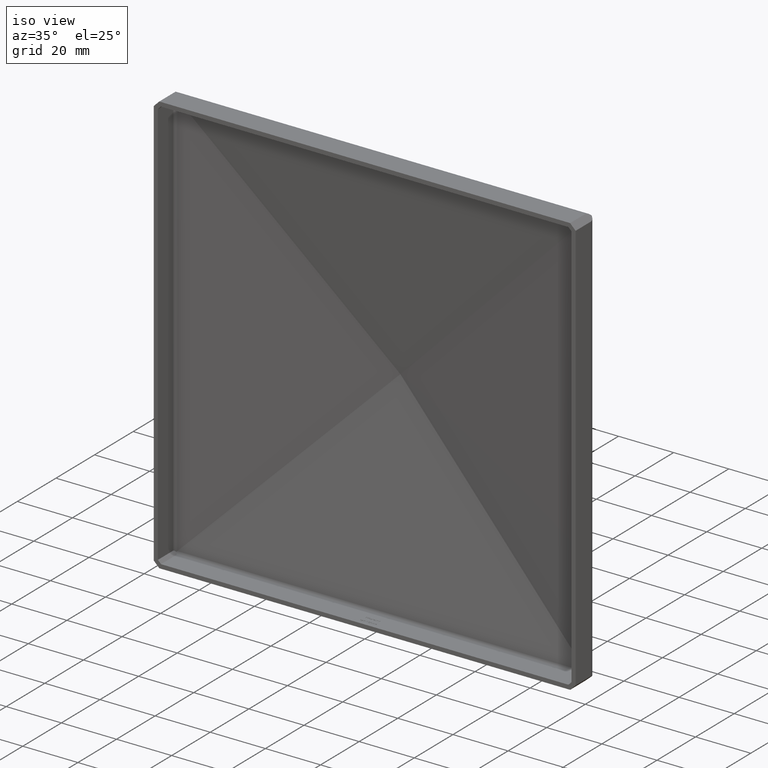
[diagram: clean part render]
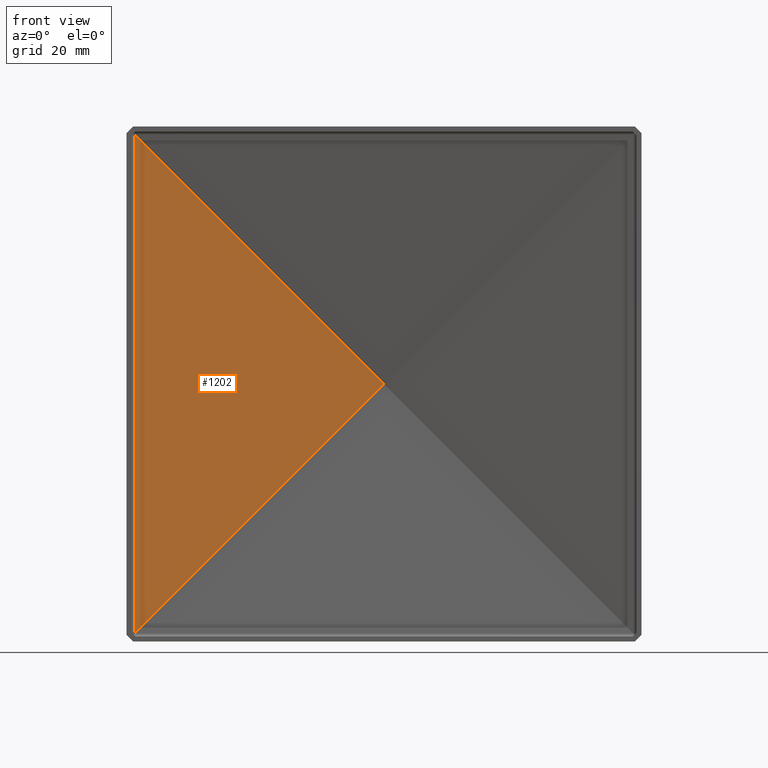
[diagram: tour spotlight — one face highlighted and labeled with its STEP entity id]
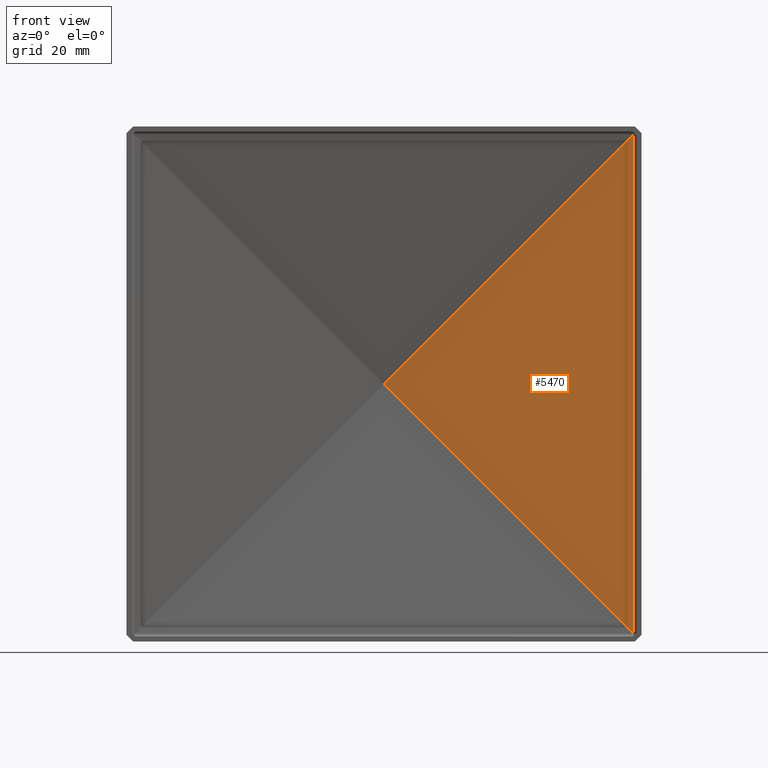
[diagram: tour spotlight — one face highlighted and labeled with its STEP entity id]
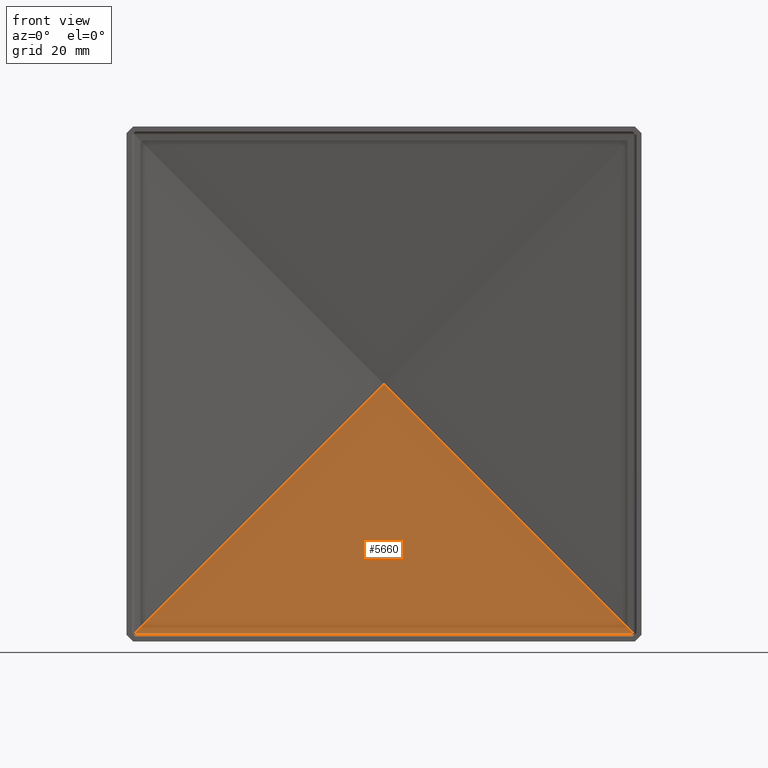
[diagram: tour spotlight — one face highlighted and labeled with its STEP entity id]
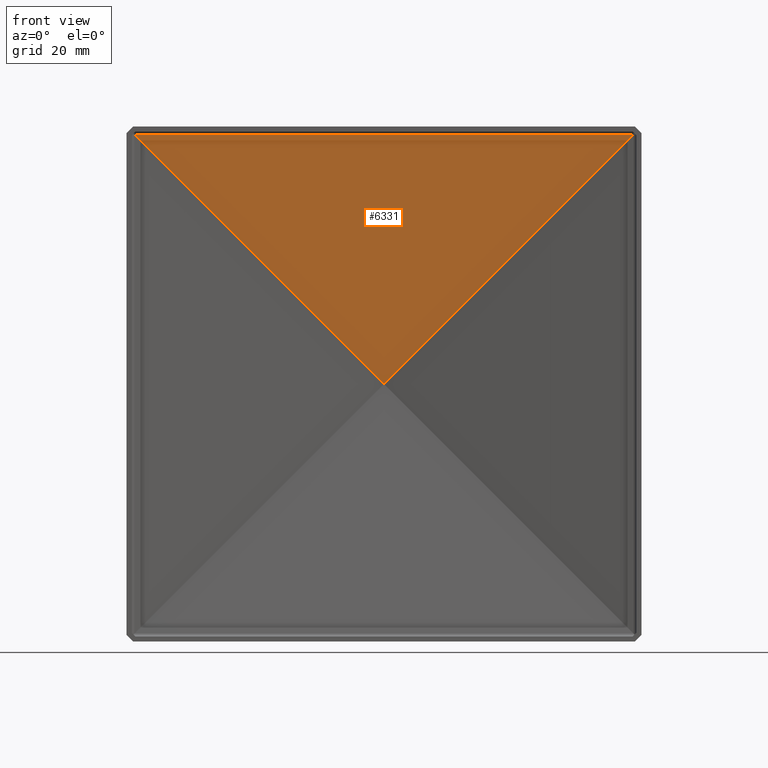
[diagram: tour spotlight — one face highlighted and labeled with its STEP entity id]
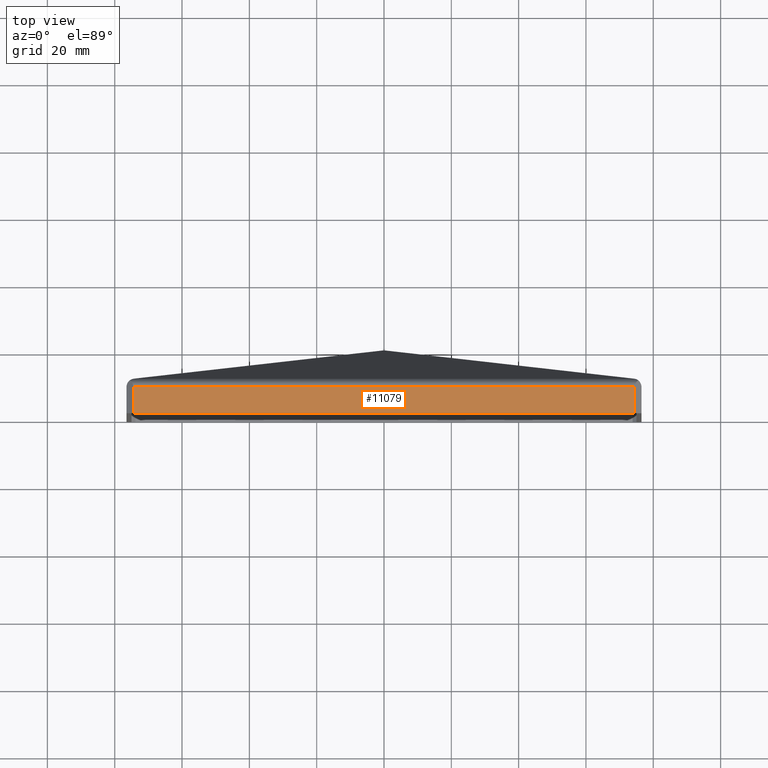
[diagram: tour spotlight — one face highlighted and labeled with its STEP entity id]
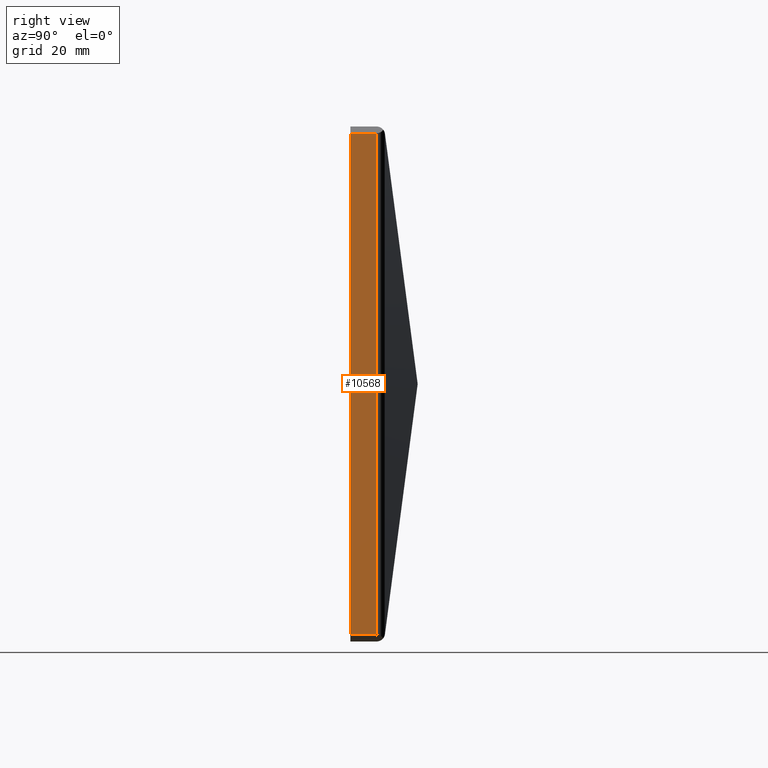
[diagram: tour spotlight — one face highlighted and labeled with its STEP entity id]
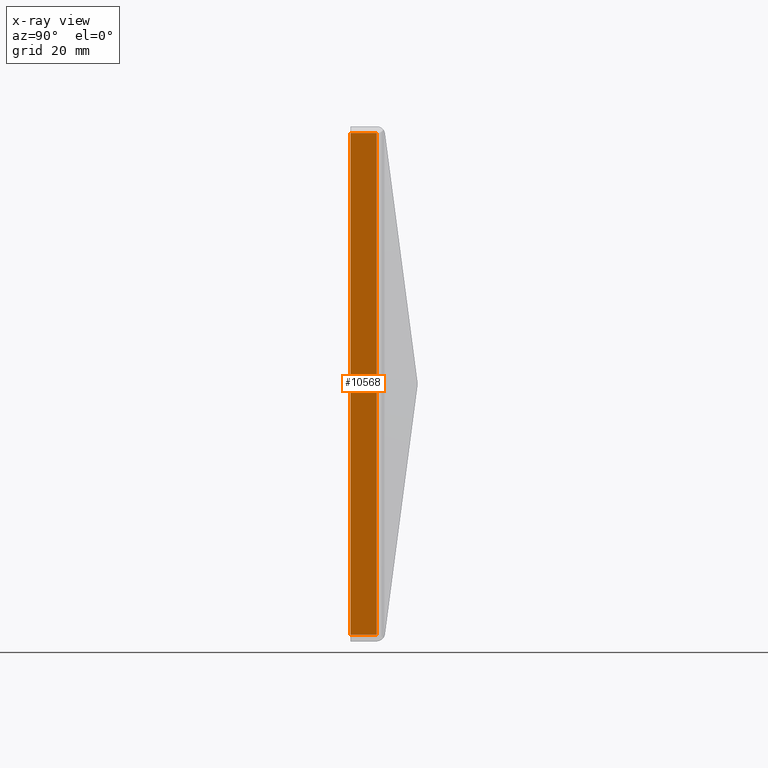
[diagram: x-ray of the same camera — body ghosted, this tour face saturated]
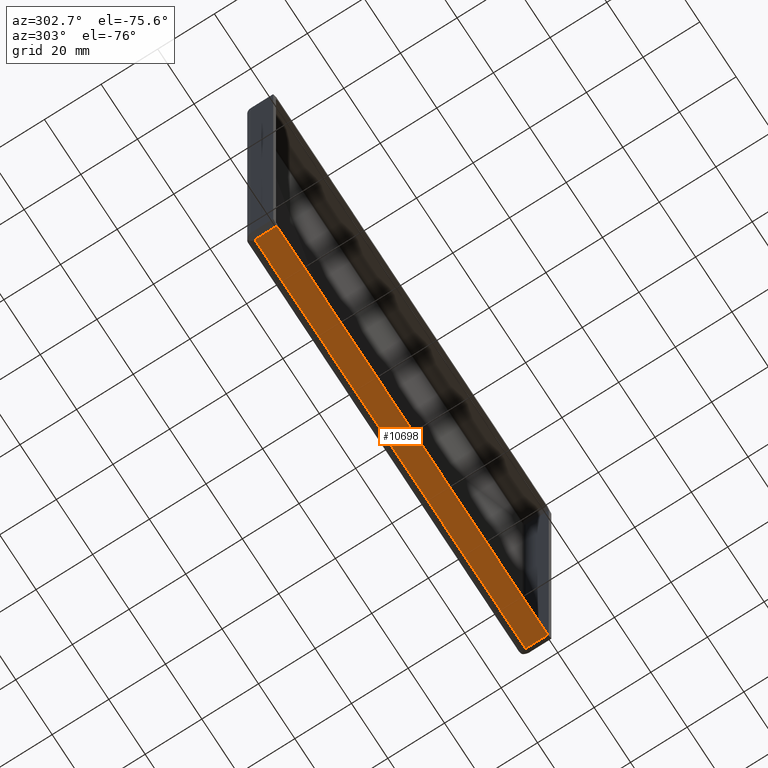
[diagram: tour spotlight — one face highlighted and labeled with its STEP entity id]
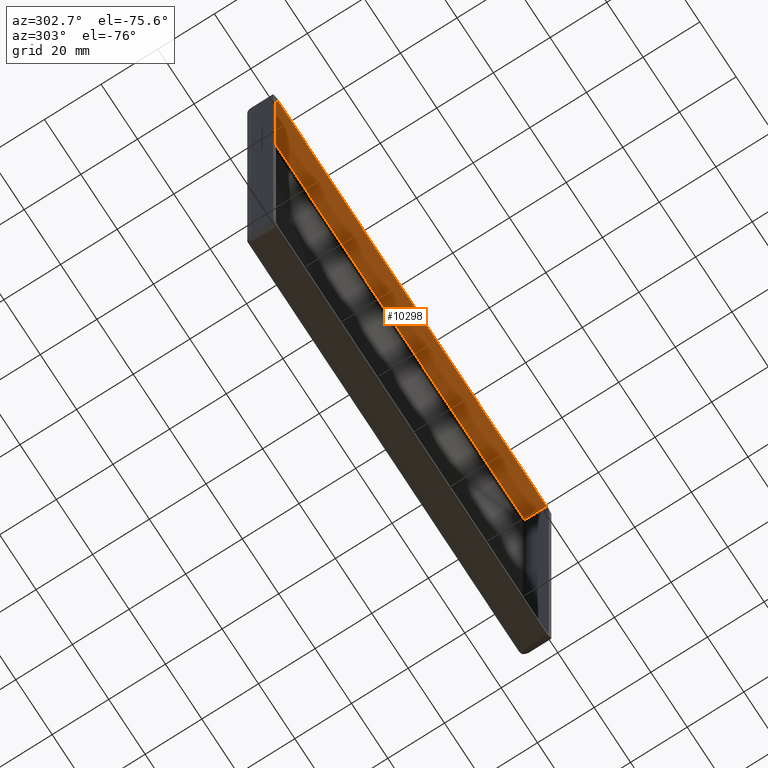
[diagram: tour spotlight — one face highlighted and labeled with its STEP entity id]
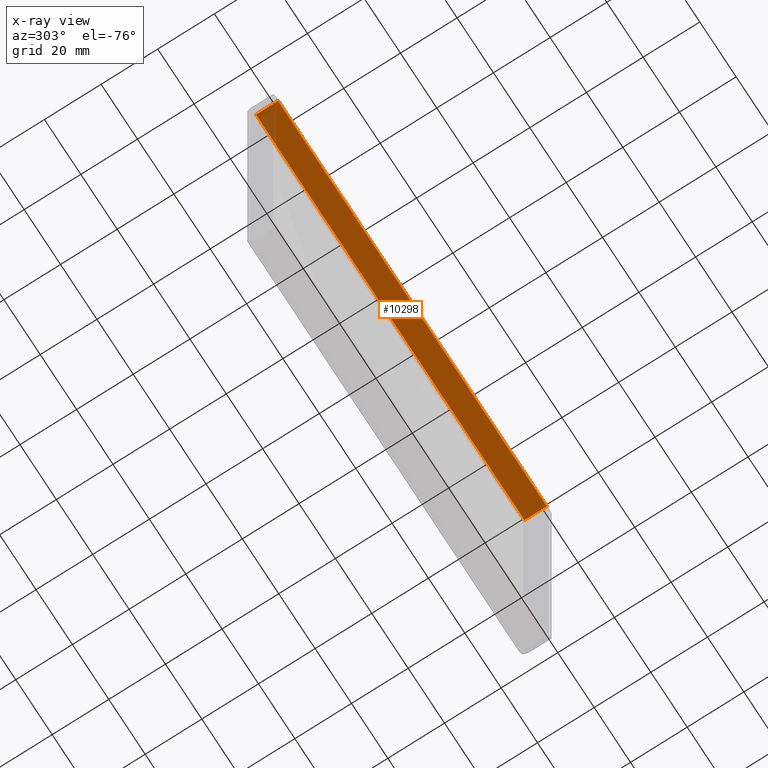
[diagram: x-ray of the same camera — body ghosted, this tour face saturated]
A machine part: a face-by-face anatomy tour. The part has 258 B-rep faces; the first image is the clean iso view, then the 8 largest visible faces are spotlighted one at a time (largest first), each with its STEP entity span.

Face 1 — front view, entity #1202. In plain terms, the highlighted planar face has unit normal (0.1296, -0.9916, 0).
Definition (entity closure, byte-faithful):
#188 = DIRECTION ( 'NONE',  ( 0.7041048305583805789, 0.09204767877958007494, 0.7041048305583802458 ) ) ;
#352 = ORIENTED_EDGE ( 'NONE', *, *, #2937, .F. ) ;
#409 = CARTESIAN_POINT ( 'NONE',  ( -1.040834085586084257E-14, 18.48808743472176630, -1.734723475976807094E-14 ) ) ;
#679 = LINE ( 'NONE', #9720, #2669 ) ;
#838 = DIRECTION ( 'NONE',  ( -0.7041048305583798017, -0.09204767877957999167, 0.7041048305583811340 ) ) ;
#1202 = ADVANCED_FACE ( 'NONE', ( #5789 ), #1869, .T. ) ;
#1819 = VECTOR ( 'NONE', #188, 1000.000000000000000 ) ;
#1869 = PLANE ( 'NONE',  #6071 ) ;
#2669 = VECTOR ( 'NONE', #838, 1000.000000000000000 ) ;
#2937 = EDGE_CURVE ( 'NONE', #9520, #7529, #6389, .T. ) ;
#3575 = ORIENTED_EDGE ( 'NONE', *, *, #5917, .T. ) ;
#3686 = CARTESIAN_POINT ( 'NONE',  ( -74.12962708345361307, 8.797115571318208538, -74.12962708345352780 ) ) ;
#4876 = DIRECTION ( 'NONE',  ( 0.9915628165856769094, 0.1296270834535715732, 0.000000000000000000 ) ) ;
#4995 = VERTEX_POINT ( 'NONE', #409 ) ;
#5105 = CARTESIAN_POINT ( 'NONE',  ( -75.30477172333286262, 8.643488821952821866, -75.30477172333283420 ) ) ;
#5789 = FACE_OUTER_BOUND ( 'NONE', #11894, .T. ) ;
#5917 = EDGE_CURVE ( 'NONE', #4995, #7529, #679, .T. ) ;
#5936 = CARTESIAN_POINT ( 'NONE',  ( -74.12962708345358465, 8.797115571318212091, -76.50000000000001421 ) ) ;
#6071 = AXIS2_PLACEMENT_3D ( 'NONE', #7828, #10594, #4876 ) ;
#6389 = LINE ( 'NONE', #5936, #8690 ) ;
#6968 = LINE ( 'NONE', #5105, #1819 ) ;
#7529 = VERTEX_POINT ( 'NONE', #11077 ) ;
#7828 = CARTESIAN_POINT ( 'NONE',  ( -74.12962708345358465, 8.797115571318212091, -76.50000000000001421 ) ) ;
#8690 = VECTOR ( 'NONE', #8775, 1000.000000000000000 ) ;
#8775 = DIRECTION ( 'NONE',  ( -0.000000000000000000, 0.000000000000000000, 1.000000000000000000 ) ) ;
#8943 = ORIENTED_EDGE ( 'NONE', *, *, #9293, .T. ) ;
#9293 = EDGE_CURVE ( 'NONE', #9520, #4995, #6968, .T. ) ;
#9520 = VERTEX_POINT ( 'NONE', #3686 ) ;
#9720 = CARTESIAN_POINT ( 'NONE',  ( 0.5470609762610045834, 18.55960475832226564, -0.5470609762610323390 ) ) ;
#10594 = DIRECTION ( 'NONE',  ( 0.1296270834535715732, -0.9915628165856769094, 0.000000000000000000 ) ) ;
#11077 = CARTESIAN_POINT ( 'NONE',  ( -74.12962708345349938, 8.797115571318219196, 74.12962708345364149 ) ) ;
#11894 = EDGE_LOOP ( 'NONE', ( #8943, #3575, #352 ) ) ;

Face 2 — front view, entity #5470. In plain terms, the highlighted planar face has unit normal (-0.1296, -0.9916, 0).
Definition (entity closure, byte-faithful):
#220 = DIRECTION ( 'NONE',  ( -0.1296270834535714067, -0.9915628165856770204, 0.000000000000000000 ) ) ;
#409 = CARTESIAN_POINT ( 'NONE',  ( -1.040834085586084257E-14, 18.48808743472176630, -1.734723475976807094E-14 ) ) ;
#763 = VECTOR ( 'NONE', #9845, 1000.000000000000227 ) ;
#1069 = CARTESIAN_POINT ( 'NONE',  ( 74.12962708345358465, 8.797115571318222749, 74.12962708345355622 ) ) ;
#2527 = DIRECTION ( 'NONE',  ( -0.000000000000000000, -0.000000000000000000, 1.000000000000000000 ) ) ;
#2590 = LINE ( 'NONE', #3002, #9249 ) ;
#2782 = EDGE_LOOP ( 'NONE', ( #12585, #12110, #3400 ) ) ;
#3002 = CARTESIAN_POINT ( 'NONE',  ( -38.01742411900810481, 23.45810822062995271, -38.01742411900810481 ) ) ;
#3400 = ORIENTED_EDGE ( 'NONE', *, *, #7825, .T. ) ;
#4178 = DIRECTION ( 'NONE',  ( 0.9915628165856769094, -0.1296270834535713790, 0.000000000000000000 ) ) ;
#4533 = FACE_OUTER_BOUND ( 'NONE', #2782, .T. ) ;
#4995 = VERTEX_POINT ( 'NONE', #409 ) ;
#5336 = VERTEX_POINT ( 'NONE', #1069 ) ;
#5470 = ADVANCED_FACE ( 'NONE', ( #4533 ), #6163, .T. ) ;
#5727 = LINE ( 'NONE', #10972, #763 ) ;
#5881 = CARTESIAN_POINT ( 'NONE',  ( 74.12962708345362728, 8.797115571318212091, -74.12962708345359886 ) ) ;
#6107 = EDGE_CURVE ( 'NONE', #11795, #5336, #11285, .T. ) ;
#6163 = PLANE ( 'NONE',  #8916 ) ;
#6827 = DIRECTION ( 'NONE',  ( -0.7041048305583805789, 0.09204767877957995004, -0.7041048305583803568 ) ) ;
#7825 = EDGE_CURVE ( 'NONE', #5336, #4995, #2590, .T. ) ;
#8916 = AXIS2_PLACEMENT_3D ( 'NONE', #10091, #220, #4178 ) ;
#9249 = VECTOR ( 'NONE', #6827, 1000.000000000000114 ) ;
#9845 = DIRECTION ( 'NONE',  ( 0.7041048305583808009, -0.09204767877957997779, -0.7041048305583800238 ) ) ;
#10091 = CARTESIAN_POINT ( 'NONE',  ( -0.1814779168349992255, 18.51181205678005881, -76.50000000000001421 ) ) ;
#10196 = CARTESIAN_POINT ( 'NONE',  ( 74.12962708345355622, 8.797115571318220972, -76.50000000000001421 ) ) ;
#10972 = CARTESIAN_POINT ( 'NONE',  ( 37.83440858058565937, 13.54199228426053558, -37.83440858058565937 ) ) ;
#11126 = VECTOR ( 'NONE', #2527, 1000.000000000000000 ) ;
#11285 = LINE ( 'NONE', #10196, #11126 ) ;
#11795 = VERTEX_POINT ( 'NONE', #5881 ) ;
#12110 = ORIENTED_EDGE ( 'NONE', *, *, #6107, .T. ) ;
#12244 = EDGE_CURVE ( 'NONE', #4995, #11795, #5727, .T. ) ;
#12585 = ORIENTED_EDGE ( 'NONE', *, *, #12244, .T. ) ;

Face 3 — front view, entity #5660. In plain terms, the highlighted planar face has unit normal (-0, 0.9916, -0.1296).
Definition (entity closure, byte-faithful):
#188 = DIRECTION ( 'NONE',  ( 0.7041048305583805789, 0.09204767877958007494, 0.7041048305583802458 ) ) ;
#390 = DIRECTION ( 'NONE',  ( 0.000000000000000000, 0.1296270834535715732, 0.9915628165856769094 ) ) ;
#409 = CARTESIAN_POINT ( 'NONE',  ( -1.040834085586084257E-14, 18.48808743472176630, -1.734723475976807094E-14 ) ) ;
#763 = VECTOR ( 'NONE', #9845, 1000.000000000000227 ) ;
#1819 = VECTOR ( 'NONE', #188, 1000.000000000000000 ) ;
#2120 = LINE ( 'NONE', #4114, #8188 ) ;
#2992 = FACE_OUTER_BOUND ( 'NONE', #3268, .T. ) ;
#3268 = EDGE_LOOP ( 'NONE', ( #11452, #10852, #3733 ) ) ;
#3686 = CARTESIAN_POINT ( 'NONE',  ( -74.12962708345361307, 8.797115571318208538, -74.12962708345352780 ) ) ;
#3733 = ORIENTED_EDGE ( 'NONE', *, *, #10530, .T. ) ;
#4114 = CARTESIAN_POINT ( 'NONE',  ( -76.50000000000008527, 8.797115571318204985, -74.12962708345355622 ) ) ;
#4937 = DIRECTION ( 'NONE',  ( 1.000000000000000000, -0.000000000000000000, -4.440892098500625669E-16 ) ) ;
#4995 = VERTEX_POINT ( 'NONE', #409 ) ;
#5105 = CARTESIAN_POINT ( 'NONE',  ( -75.30477172333286262, 8.643488821952821866, -75.30477172333283420 ) ) ;
#5391 = DIRECTION ( 'NONE',  ( -5.756598906606471355E-17, 0.9915628165856769094, -0.1296270834535715732 ) ) ;
#5660 = ADVANCED_FACE ( 'NONE', ( #2992 ), #11315, .F. ) ;
#5727 = LINE ( 'NONE', #10972, #763 ) ;
#5881 = CARTESIAN_POINT ( 'NONE',  ( 74.12962708345362728, 8.797115571318212091, -74.12962708345359886 ) ) ;
#6968 = LINE ( 'NONE', #5105, #1819 ) ;
#7364 = CARTESIAN_POINT ( 'NONE',  ( -76.50000000000008527, 8.797115571318212091, -74.12962708345355622 ) ) ;
#7781 = AXIS2_PLACEMENT_3D ( 'NONE', #7364, #5391, #390 ) ;
#8188 = VECTOR ( 'NONE', #4937, 1000.000000000000000 ) ;
#9293 = EDGE_CURVE ( 'NONE', #9520, #4995, #6968, .T. ) ;
#9520 = VERTEX_POINT ( 'NONE', #3686 ) ;
#9845 = DIRECTION ( 'NONE',  ( 0.7041048305583808009, -0.09204767877957997779, -0.7041048305583800238 ) ) ;
#10530 = EDGE_CURVE ( 'NONE', #9520, #11795, #2120, .T. ) ;
#10852 = ORIENTED_EDGE ( 'NONE', *, *, #9293, .F. ) ;
#10972 = CARTESIAN_POINT ( 'NONE',  ( 37.83440858058565937, 13.54199228426053558, -37.83440858058565937 ) ) ;
#11315 = PLANE ( 'NONE',  #7781 ) ;
#11452 = ORIENTED_EDGE ( 'NONE', *, *, #12244, .F. ) ;
#11795 = VERTEX_POINT ( 'NONE', #5881 ) ;
#12244 = EDGE_CURVE ( 'NONE', #4995, #11795, #5727, .T. ) ;

Face 4 — front view, entity #6331. In plain terms, the highlighted planar face has unit normal (0, 0.9916, 0.1296).
Definition (entity closure, byte-faithful):
#366 = EDGE_LOOP ( 'NONE', ( #7617, #2521, #7455 ) ) ;
#409 = CARTESIAN_POINT ( 'NONE',  ( -1.040834085586084257E-14, 18.48808743472176630, -1.734723475976807094E-14 ) ) ;
#679 = LINE ( 'NONE', #9720, #2669 ) ;
#838 = DIRECTION ( 'NONE',  ( -0.7041048305583798017, -0.09204767877957999167, 0.7041048305583811340 ) ) ;
#917 = VECTOR ( 'NONE', #11290, 1000.000000000000000 ) ;
#1049 = CARTESIAN_POINT ( 'NONE',  ( -76.50000000000007105, 18.51181205678005881, -0.1814779168349652805 ) ) ;
#1069 = CARTESIAN_POINT ( 'NONE',  ( 74.12962708345358465, 8.797115571318222749, 74.12962708345355622 ) ) ;
#2439 = AXIS2_PLACEMENT_3D ( 'NONE', #1049, #8012, #3885 ) ;
#2521 = ORIENTED_EDGE ( 'NONE', *, *, #12370, .F. ) ;
#2590 = LINE ( 'NONE', #3002, #9249 ) ;
#2669 = VECTOR ( 'NONE', #838, 1000.000000000000000 ) ;
#3002 = CARTESIAN_POINT ( 'NONE',  ( -38.01742411900810481, 23.45810822062995271, -38.01742411900810481 ) ) ;
#3445 = CARTESIAN_POINT ( 'NONE',  ( -76.50000000000007105, 8.797115571318226301, 74.12962708345359886 ) ) ;
#3885 = DIRECTION ( 'NONE',  ( 0.000000000000000000, -0.1296270834535713790, 0.9915628165856769094 ) ) ;
#4995 = VERTEX_POINT ( 'NONE', #409 ) ;
#5107 = LINE ( 'NONE', #3445, #917 ) ;
#5336 = VERTEX_POINT ( 'NONE', #1069 ) ;
#5917 = EDGE_CURVE ( 'NONE', #4995, #7529, #679, .T. ) ;
#6331 = ADVANCED_FACE ( 'NONE', ( #12530 ), #6987, .F. ) ;
#6827 = DIRECTION ( 'NONE',  ( -0.7041048305583805789, 0.09204767877957995004, -0.7041048305583803568 ) ) ;
#6987 = PLANE ( 'NONE',  #2439 ) ;
#7455 = ORIENTED_EDGE ( 'NONE', *, *, #5917, .F. ) ;
#7529 = VERTEX_POINT ( 'NONE', #11077 ) ;
#7617 = ORIENTED_EDGE ( 'NONE', *, *, #7825, .F. ) ;
#7825 = EDGE_CURVE ( 'NONE', #5336, #4995, #2590, .T. ) ;
#8012 = DIRECTION ( 'NONE',  ( 5.756598906606463959E-17, 0.9915628165856770204, 0.1296270834535714067 ) ) ;
#9249 = VECTOR ( 'NONE', #6827, 1000.000000000000114 ) ;
#9720 = CARTESIAN_POINT ( 'NONE',  ( 0.5470609762610045834, 18.55960475832226564, -0.5470609762610323390 ) ) ;
#11077 = CARTESIAN_POINT ( 'NONE',  ( -74.12962708345349938, 8.797115571318219196, 74.12962708345364149 ) ) ;
#11290 = DIRECTION ( 'NONE',  ( 1.000000000000000000, -5.708029425788732852E-17, -7.462111268754138080E-18 ) ) ;
#12370 = EDGE_CURVE ( 'NONE', #7529, #5336, #5107, .T. ) ;
#12530 = FACE_OUTER_BOUND ( 'NONE', #366, .T. ) ;

Face 5 — top view, entity #11079. In plain terms, the highlighted planar face has unit normal (0, 0, -1).
Definition (entity closure, byte-faithful):
#247 = LINE ( 'NONE', #8084, #1311 ) ;
#282 = CARTESIAN_POINT ( 'NONE',  ( -76.50000000000000000, 0.000000000000000000, 76.49999999999998579 ) ) ;
#523 = CARTESIAN_POINT ( 'NONE',  ( 74.50000000000009948, 7.805552754732534737, 76.49999999999995737 ) ) ;
#982 = ORIENTED_EDGE ( 'NONE', *, *, #5424, .T. ) ;
#1311 = VECTOR ( 'NONE', #7951, 1000.000000000000000 ) ;
#1951 = DIRECTION ( 'NONE',  ( 0.000000000000000000, 0.000000000000000000, -1.000000000000000000 ) ) ;
#2512 = CARTESIAN_POINT ( 'NONE',  ( -74.49999999999997158, 7.805552754732534737, 76.50000000000001421 ) ) ;
#2769 = ORIENTED_EDGE ( 'NONE', *, *, #4393, .F. ) ;
#2922 = PLANE ( 'NONE',  #9676 ) ;
#3070 = CARTESIAN_POINT ( 'NONE',  ( -74.49999999999997158, 0.000000000000000000, 76.50000000000001421 ) ) ;
#3239 = LINE ( 'NONE', #282, #10321 ) ;
#3746 = EDGE_CURVE ( 'NONE', #7491, #8968, #9893, .T. ) ;
#4393 = EDGE_CURVE ( 'NONE', #8968, #6382, #6979, .T. ) ;
#4508 = CARTESIAN_POINT ( 'NONE',  ( -76.50000000000005684, 7.805552754732534737, 76.50000000000001421 ) ) ;
#4785 = DIRECTION ( 'NONE',  ( -1.000000000000000000, 0.000000000000000000, -0.000000000000000000 ) ) ;
#5424 = EDGE_CURVE ( 'NONE', #7491, #10519, #247, .T. ) ;
#5524 = ORIENTED_EDGE ( 'NONE', *, *, #3746, .F. ) ;
#5756 = DIRECTION ( 'NONE',  ( 1.000000000000000000, -0.000000000000000000, -4.440892098500625669E-16 ) ) ;
#6382 = VERTEX_POINT ( 'NONE', #10729 ) ;
#6979 = LINE ( 'NONE', #8800, #12475 ) ;
#7289 = ORIENTED_EDGE ( 'NONE', *, *, #12333, .T. ) ;
#7294 = VECTOR ( 'NONE', #5756, 1000.000000000000000 ) ;
#7491 = VERTEX_POINT ( 'NONE', #2512 ) ;
#7773 = DIRECTION ( 'NONE',  ( -0.000000000000000000, -1.000000000000000000, -0.000000000000000000 ) ) ;
#7951 = DIRECTION ( 'NONE',  ( -0.000000000000000000, -1.000000000000000000, -0.000000000000000000 ) ) ;
#8084 = CARTESIAN_POINT ( 'NONE',  ( -74.49999999999997158, 20.00000000000000711, 76.50000000000001421 ) ) ;
#8800 = CARTESIAN_POINT ( 'NONE',  ( 74.50000000000002842, 20.00000000000000711, 76.50000000000001421 ) ) ;
#8968 = VERTEX_POINT ( 'NONE', #523 ) ;
#9232 = EDGE_LOOP ( 'NONE', ( #5524, #982, #7289, #2769 ) ) ;
#9676 = AXIS2_PLACEMENT_3D ( 'NONE', #11659, #1951, #4785 ) ;
#9893 = LINE ( 'NONE', #4508, #7294 ) ;
#10301 = FACE_OUTER_BOUND ( 'NONE', #9232, .T. ) ;
#10321 = VECTOR ( 'NONE', #11173, 1000.000000000000000 ) ;
#10519 = VERTEX_POINT ( 'NONE', #3070 ) ;
#10729 = CARTESIAN_POINT ( 'NONE',  ( 74.50000000000002842, 0.000000000000000000, 76.50000000000001421 ) ) ;
#11079 = ADVANCED_FACE ( 'NONE', ( #10301 ), #2922, .F. ) ;
#11173 = DIRECTION ( 'NONE',  ( 1.000000000000000000, 0.000000000000000000, 0.000000000000000000 ) ) ;
#11659 = CARTESIAN_POINT ( 'NONE',  ( -76.50000000000000000, 25.00000000000000000, 76.49999999999998579 ) ) ;
#12333 = EDGE_CURVE ( 'NONE', #10519, #6382, #3239, .T. ) ;
#12475 = VECTOR ( 'NONE', #7773, 1000.000000000000000 ) ;

Face 6 — right view, entity #10568. An x-ray twin of the same camera follows (body ghosted, this face saturated) — the face is partly hidden behind the body. In plain terms, the highlighted planar face has unit normal (-1, 0, 0).
Definition (entity closure, byte-faithful):
#35 = EDGE_LOOP ( 'NONE', ( #6605, #4331, #10907, #12232 ) ) ;
#612 = LINE ( 'NONE', #9792, #7286 ) ;
#1060 = VECTOR ( 'NONE', #8102, 1000.000000000000000 ) ;
#1482 = CARTESIAN_POINT ( 'NONE',  ( 76.50000000000001421, 7.805552754732537402, -74.49999999999998579 ) ) ;
#2165 = VERTEX_POINT ( 'NONE', #1482 ) ;
#2509 = VERTEX_POINT ( 'NONE', #4036 ) ;
#2670 = CARTESIAN_POINT ( 'NONE',  ( 76.49999999999998579, 7.805552754732534737, -76.50000000000001421 ) ) ;
#3327 = DIRECTION ( 'NONE',  ( 9.070449547591148029E-17, 0.000000000000000000, 1.000000000000000000 ) ) ;
#3981 = LINE ( 'NONE', #11044, #1060 ) ;
#4036 = CARTESIAN_POINT ( 'NONE',  ( 76.50000000000002842, 7.805552754732537402, 74.50000000000001421 ) ) ;
#4331 = ORIENTED_EDGE ( 'NONE', *, *, #4999, .T. ) ;
#4999 = EDGE_CURVE ( 'NONE', #2509, #12628, #5550, .T. ) ;
#5543 = DIRECTION ( 'NONE',  ( -0.000000000000000000, -1.000000000000000000, -0.000000000000000000 ) ) ;
#5550 = LINE ( 'NONE', #9499, #9712 ) ;
#5765 = DIRECTION ( 'NONE',  ( -0.000000000000000000, -1.000000000000000000, -0.000000000000000000 ) ) ;
#5821 = DIRECTION ( 'NONE',  ( -0.000000000000000000, -0.000000000000000000, 1.000000000000000000 ) ) ;
#6183 = DIRECTION ( 'NONE',  ( -1.000000000000000000, 0.000000000000000000, 9.070449547591148029E-17 ) ) ;
#6605 = ORIENTED_EDGE ( 'NONE', *, *, #6895, .T. ) ;
#6668 = EDGE_CURVE ( 'NONE', #2165, #12208, #612, .T. ) ;
#6895 = EDGE_CURVE ( 'NONE', #2165, #2509, #10490, .T. ) ;
#7286 = VECTOR ( 'NONE', #5765, 1000.000000000000000 ) ;
#7325 = PLANE ( 'NONE',  #9936 ) ;
#7808 = CARTESIAN_POINT ( 'NONE',  ( 76.50000000000001421, 0.000000000000000000, -74.49999999999998579 ) ) ;
#8102 = DIRECTION ( 'NONE',  ( -9.070449547591148029E-17, -0.000000000000000000, -1.000000000000000000 ) ) ;
#8613 = EDGE_CURVE ( 'NONE', #12628, #12208, #3981, .T. ) ;
#9499 = CARTESIAN_POINT ( 'NONE',  ( 76.50000000000002842, 20.00000000000000711, 74.50000000000001421 ) ) ;
#9712 = VECTOR ( 'NONE', #5543, 1000.000000000000000 ) ;
#9792 = CARTESIAN_POINT ( 'NONE',  ( 76.50000000000001421, 20.00000000000000711, -74.49999999999998579 ) ) ;
#9936 = AXIS2_PLACEMENT_3D ( 'NONE', #10190, #6183, #3327 ) ;
#10019 = FACE_OUTER_BOUND ( 'NONE', #35, .T. ) ;
#10190 = CARTESIAN_POINT ( 'NONE',  ( 76.49999999999997158, 25.00000000000000000, -76.50000000000001421 ) ) ;
#10199 = VECTOR ( 'NONE', #5821, 1000.000000000000000 ) ;
#10490 = LINE ( 'NONE', #2670, #10199 ) ;
#10568 = ADVANCED_FACE ( 'NONE', ( #10019 ), #7325, .F. ) ;
#10907 = ORIENTED_EDGE ( 'NONE', *, *, #8613, .T. ) ;
#11044 = CARTESIAN_POINT ( 'NONE',  ( 76.49999999999997158, 0.000000000000000000, -76.50000000000001421 ) ) ;
#12016 = CARTESIAN_POINT ( 'NONE',  ( 76.50000000000002842, 0.000000000000000000, 74.50000000000001421 ) ) ;
#12208 = VERTEX_POINT ( 'NONE', #7808 ) ;
#12232 = ORIENTED_EDGE ( 'NONE', *, *, #6668, .F. ) ;
#12628 = VERTEX_POINT ( 'NONE', #12016 ) ;

Face 7 — auxiliary view, entity #10698. In plain terms, the highlighted planar face has unit normal (0, 0, 1).
Definition (entity closure, byte-faithful):
#277 = DIRECTION ( 'NONE',  ( 0.000000000000000000, 0.000000000000000000, 1.000000000000000000 ) ) ;
#918 = LINE ( 'NONE', #2955, #3240 ) ;
#1132 = DIRECTION ( 'NONE',  ( 1.000000000000000000, -0.000000000000000000, -4.440892098500625669E-16 ) ) ;
#1475 = DIRECTION ( 'NONE',  ( -0.000000000000000000, -1.000000000000000000, -0.000000000000000000 ) ) ;
#1614 = DIRECTION ( 'NONE',  ( -0.000000000000000000, -1.000000000000000000, -0.000000000000000000 ) ) ;
#1798 = CARTESIAN_POINT ( 'NONE',  ( 74.49999999999994316, 7.805552754732534737, -76.50000000000004263 ) ) ;
#1871 = CARTESIAN_POINT ( 'NONE',  ( -74.50000000000000000, 7.805552754732537402, -76.49999999999998579 ) ) ;
#1910 = CARTESIAN_POINT ( 'NONE',  ( -74.50000000000000000, -0.000000000000000000, -76.49999999999998579 ) ) ;
#2325 = LINE ( 'NONE', #7547, #10497 ) ;
#2955 = CARTESIAN_POINT ( 'NONE',  ( -76.50000000000001421, 0.000000000000000000, -76.50000000000001421 ) ) ;
#3097 = EDGE_CURVE ( 'NONE', #9897, #3217, #11728, .T. ) ;
#3184 = DIRECTION ( 'NONE',  ( -1.000000000000000000, -0.000000000000000000, -0.000000000000000000 ) ) ;
#3217 = VERTEX_POINT ( 'NONE', #1798 ) ;
#3240 = VECTOR ( 'NONE', #3184, 1000.000000000000000 ) ;
#3453 = CARTESIAN_POINT ( 'NONE',  ( 74.50000000000001421, 0.000000000000000000, -76.49999999999998579 ) ) ;
#3640 = EDGE_CURVE ( 'NONE', #9897, #6410, #5414, .T. ) ;
#4932 = EDGE_CURVE ( 'NONE', #5059, #6410, #918, .T. ) ;
#5059 = VERTEX_POINT ( 'NONE', #3453 ) ;
#5148 = CARTESIAN_POINT ( 'NONE',  ( -74.50000000000000000, 20.00000000000000711, -76.49999999999998579 ) ) ;
#5205 = PLANE ( 'NONE',  #8151 ) ;
#5414 = LINE ( 'NONE', #5148, #10050 ) ;
#5811 = CARTESIAN_POINT ( 'NONE',  ( -76.50000000000008527, 7.805552754732534737, -76.49999999999997158 ) ) ;
#5856 = ORIENTED_EDGE ( 'NONE', *, *, #3097, .T. ) ;
#6225 = CARTESIAN_POINT ( 'NONE',  ( -76.50000000000001421, 25.00000000000000000, -76.50000000000001421 ) ) ;
#6280 = EDGE_CURVE ( 'NONE', #3217, #5059, #2325, .T. ) ;
#6410 = VERTEX_POINT ( 'NONE', #1910 ) ;
#7305 = ORIENTED_EDGE ( 'NONE', *, *, #4932, .T. ) ;
#7547 = CARTESIAN_POINT ( 'NONE',  ( 74.50000000000001421, 20.00000000000000711, -76.49999999999998579 ) ) ;
#7550 = FACE_OUTER_BOUND ( 'NONE', #12690, .T. ) ;
#7832 = ORIENTED_EDGE ( 'NONE', *, *, #6280, .T. ) ;
#8151 = AXIS2_PLACEMENT_3D ( 'NONE', #6225, #277, #8191 ) ;
#8191 = DIRECTION ( 'NONE',  ( 1.000000000000000000, 0.000000000000000000, -0.000000000000000000 ) ) ;
#9897 = VERTEX_POINT ( 'NONE', #1871 ) ;
#10050 = VECTOR ( 'NONE', #1475, 1000.000000000000000 ) ;
#10497 = VECTOR ( 'NONE', #1614, 1000.000000000000000 ) ;
#10698 = ADVANCED_FACE ( 'NONE', ( #7550 ), #5205, .F. ) ;
#11728 = LINE ( 'NONE', #5811, #12328 ) ;
#12221 = ORIENTED_EDGE ( 'NONE', *, *, #3640, .F. ) ;
#12328 = VECTOR ( 'NONE', #1132, 1000.000000000000000 ) ;
#12690 = EDGE_LOOP ( 'NONE', ( #7305, #12221, #5856, #7832 ) ) ;

Face 8 — auxiliary view, entity #10298. An x-ray twin of the same camera follows (body ghosted, this face saturated) — the face is partly hidden behind the body. In plain terms, the highlighted planar face has unit normal (0, 0, -1).
Definition (entity closure, byte-faithful):
#776 = VERTEX_POINT ( 'NONE', #2787 ) ;
#1114 = ORIENTED_EDGE ( 'NONE', *, *, #3485, .T. ) ;
#1148 = EDGE_CURVE ( 'NONE', #1855, #4071, #5308, .T. ) ;
#1653 = DIRECTION ( 'NONE',  ( 0.000000000000000000, -1.000000000000000000, 0.000000000000000000 ) ) ;
#1788 = VECTOR ( 'NONE', #1653, 1000.000000000000000 ) ;
#1794 = CARTESIAN_POINT ( 'NONE',  ( -76.50000000000005684, 7.805552754732534737, 75.00000000000002842 ) ) ;
#1855 = VERTEX_POINT ( 'NONE', #5859 ) ;
#2077 = DIRECTION ( 'NONE',  ( 1.000000000000000000, -0.000000000000000000, 0.000000000000000000 ) ) ;
#2662 = EDGE_CURVE ( 'NONE', #4071, #776, #11137, .T. ) ;
#2694 = CARTESIAN_POINT ( 'NONE',  ( -73.87867965644036872, 25.00000000000000000, 74.99999999999998579 ) ) ;
#2737 = CARTESIAN_POINT ( 'NONE',  ( 73.87867965644042556, 20.00000000000000711, 74.99999999999998579 ) ) ;
#2787 = CARTESIAN_POINT ( 'NONE',  ( 73.87867965644042556, 0.000000000000000000, 74.99999999999998579 ) ) ;
#3485 = EDGE_CURVE ( 'NONE', #1855, #5923, #3712, .T. ) ;
#3712 = LINE ( 'NONE', #1794, #6673 ) ;
#3784 = EDGE_LOOP ( 'NONE', ( #1114, #10171, #6695, #6594 ) ) ;
#4071 = VERTEX_POINT ( 'NONE', #6282 ) ;
#4168 = CARTESIAN_POINT ( 'NONE',  ( -76.50000000000000000, 0.000000000000000000, 74.99999999999998579 ) ) ;
#4385 = AXIS2_PLACEMENT_3D ( 'NONE', #7628, #4619, #7503 ) ;
#4619 = DIRECTION ( 'NONE',  ( 0.000000000000000000, 0.000000000000000000, -1.000000000000000000 ) ) ;
#5308 = LINE ( 'NONE', #2694, #8715 ) ;
#5859 = CARTESIAN_POINT ( 'NONE',  ( -73.87867965644032608, 7.805552754732534737, 75.00000000000002842 ) ) ;
#5923 = VERTEX_POINT ( 'NONE', #6629 ) ;
#6282 = CARTESIAN_POINT ( 'NONE',  ( -73.87867965644036872, 0.000000000000000000, 74.99999999999998579 ) ) ;
#6545 = PLANE ( 'NONE',  #4385 ) ;
#6594 = ORIENTED_EDGE ( 'NONE', *, *, #1148, .F. ) ;
#6629 = CARTESIAN_POINT ( 'NONE',  ( 73.87867965644046819, 7.805552754732534737, 74.99999999999995737 ) ) ;
#6673 = VECTOR ( 'NONE', #8816, 1000.000000000000000 ) ;
#6695 = ORIENTED_EDGE ( 'NONE', *, *, #2662, .F. ) ;
#7484 = DIRECTION ( 'NONE',  ( 0.000000000000000000, -1.000000000000000000, 0.000000000000000000 ) ) ;
#7503 = DIRECTION ( 'NONE',  ( -1.000000000000000000, 0.000000000000000000, -0.000000000000000000 ) ) ;
#7628 = CARTESIAN_POINT ( 'NONE',  ( -76.50000000000000000, 25.00000000000000000, 74.99999999999998579 ) ) ;
#8715 = VECTOR ( 'NONE', #7484, 1000.000000000000000 ) ;
#8816 = DIRECTION ( 'NONE',  ( 1.000000000000000000, -0.000000000000000000, -4.440892098500625669E-16 ) ) ;
#9094 = FACE_OUTER_BOUND ( 'NONE', #3784, .T. ) ;
#9596 = VECTOR ( 'NONE', #2077, 1000.000000000000000 ) ;
#10171 = ORIENTED_EDGE ( 'NONE', *, *, #11745, .T. ) ;
#10298 = ADVANCED_FACE ( 'NONE', ( #9094 ), #6545, .T. ) ;
#10592 = LINE ( 'NONE', #2737, #1788 ) ;
#11137 = LINE ( 'NONE', #4168, #9596 ) ;
#11745 = EDGE_CURVE ( 'NONE', #5923, #776, #10592, .T. ) ;